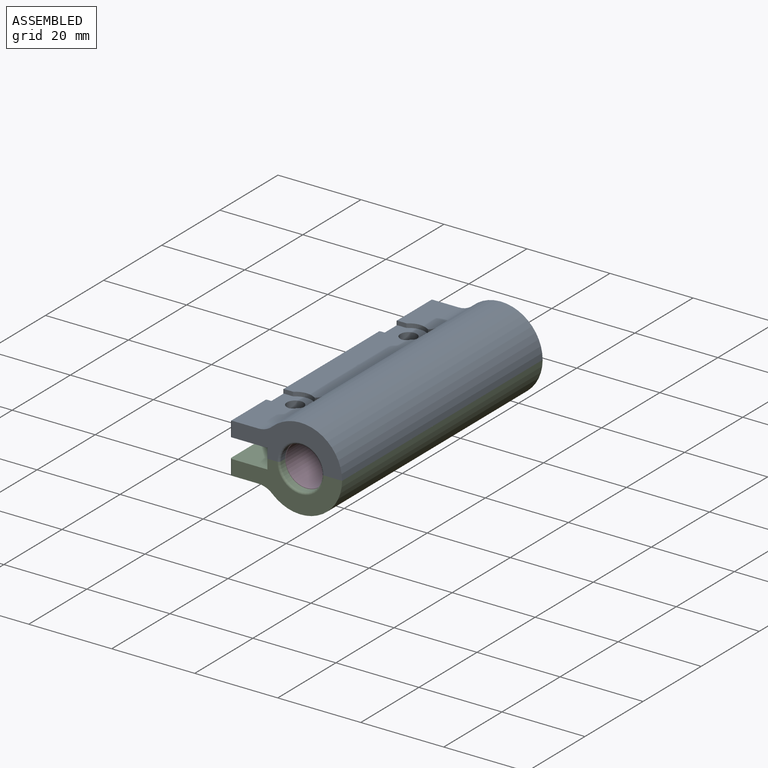
[diagram: assembled view]
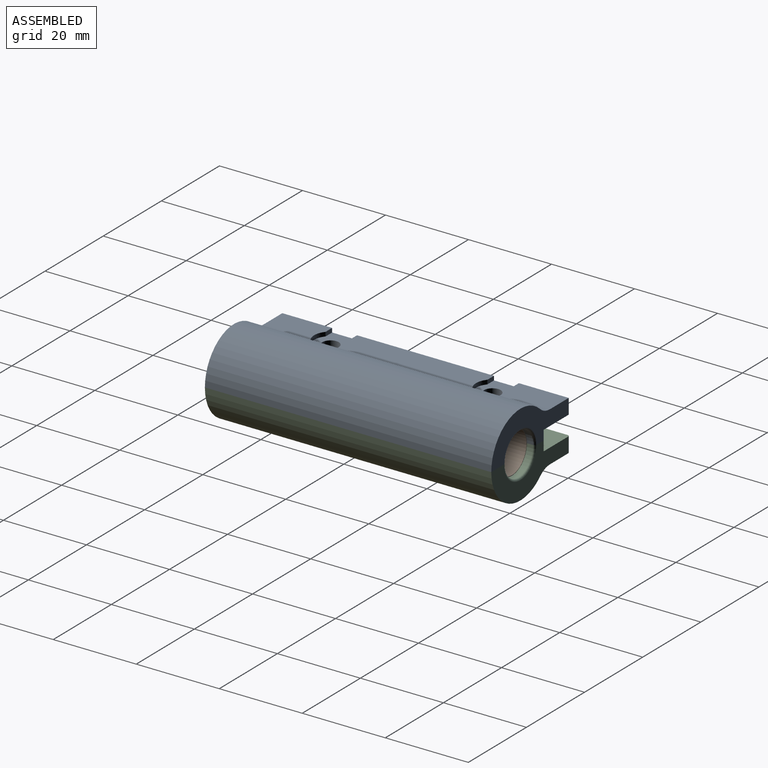
[diagram: assembled view, second angle]
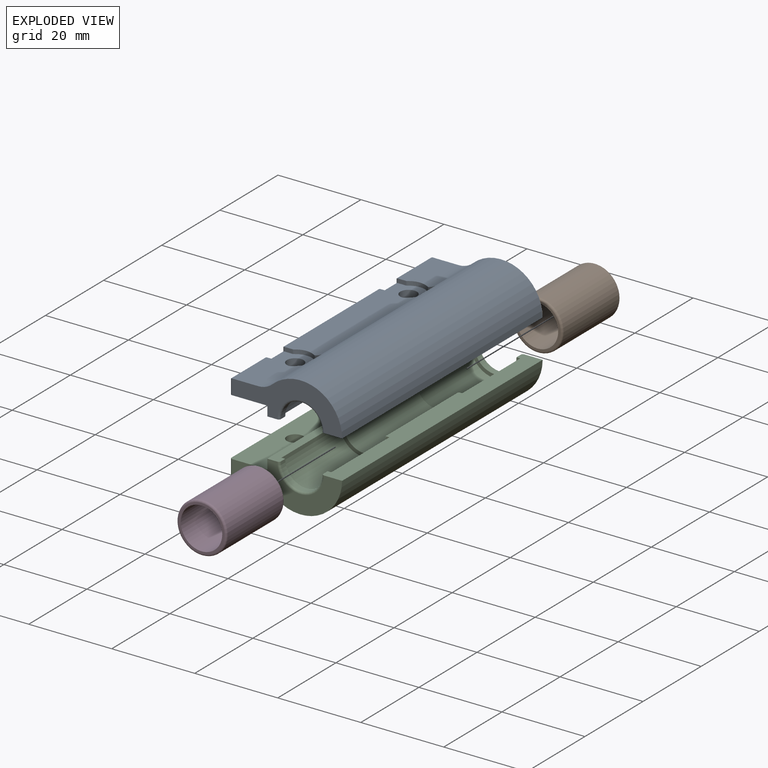
[diagram: exploded view]
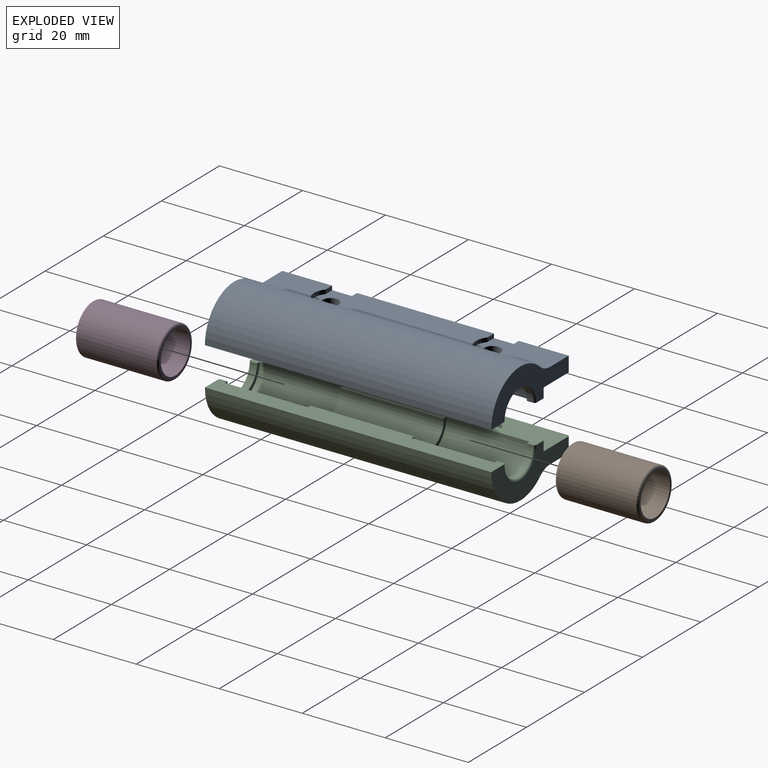
[diagram: exploded view, second angle]
ASSEMBLY  parts=4 mates=3
PART A: 66 faces, bbox 27x10x69 mm
  f0: cylinder r=10mm len=69mm, axis (0,0,1), area 1596.7mm2, adj f3,f10,f12,f13,f23,f24,f25,f33
  f1: plane 12x6.3mm, normal (0,1,0), area 72.6mm2, adj f13,f23,f39,f40,f51,f52
  f2: plane 12x6.3mm, normal (0,1,0), area 72.6mm2, adj f12,f24,f28,f31,f42,f59
  f3: cylinder r=5mm len=33.2mm, axis (0,0,1), area 122.7mm2, adj f0,f11,f26,f30,f34,f35,f54,f57
  f4: cylinder r=6mm len=20mm, axis (0,0,1), area 377mm2, adj f9,f10,f16,f20
  f5: cylinder r=6mm len=20mm, axis (0,0,1), area 377mm2, adj f9,f10,f15,f18
  f6: plane 68x3.15mm, normal (1,0,0), area 200.2mm2, adj f7,f41,f42,f43,f44,f45,f46,f47
  f7: plane 69x9mm, normal (0,-1,0), area 595.8mm2, adj f6,f8,f12,f13,f21,f22,f41,f50
  f8: plane 69x2.35mm, normal (1,0,0), area 162.1mm2, adj f7,f9,f12,f13
  f9: plane 69x2.9mm, normal (0,-1,0), area 164mm2, adj f4,f5,f8,f12,f13,f14,f15,f16
  f10: plane 69x4.9mm, normal (0,-1,0), area 302mm2, adj f0,f4,f5,f12,f13,f14,f15,f16
  f11: plane 33x6.3mm, normal (0,1,0), area 201.9mm2, adj f3,f29,f30,f35,f38,f46,f53,f58
  f12: plane 26.5x10mm, normal (0,0,-1), area 131.2mm2, adj f0,f2,f7,f8,f9,f10,f24,f41
  f13: plane 26.5x10mm, normal (0,0,1), area 131.2mm2, adj f0,f1,f7,f8,f9,f10,f23,f50
  f14: cylinder r=5.1mm len=25mm, axis (0,0,1), area 400.6mm2, adj f9,f10,f15,f16
  f15: plane 12x6mm, normal (0,0,-1), area 15.7mm2, adj f5,f9,f10,f14
  f16: plane 12x6mm, normal (0,0,1), area 15.7mm2, adj f4,f9,f10,f14
  f17: cylinder r=5.1mm len=10.2mm, axis (0,0,-1), area 24mm2, adj f9,f10,f18,f65
  f18: plane 12x6mm, normal (0,0,1), area 15.7mm2, adj f5,f9,f10,f17
  f19: cylinder r=5.1mm len=10.2mm, axis (0,0,1), area 24mm2, adj f9,f10,f20,f64
  f20: plane 12x6mm, normal (0,0,-1), area 15.7mm2, adj f4,f9,f10,f19
  f21: cylinder r=2mm len=4mm, axis (0,-1,0), area 33.3mm2, adj f7,f36
  f22: cylinder r=2mm len=4mm, axis (0,-1,0), area 33.3mm2, adj f7,f32
  f23: cylinder r=5mm len=12.1mm, axis (0,0,1), area 44.5mm2, adj f0,f1,f13,f37,f40,f55,f56
  f24: cylinder r=5mm len=12.1mm, axis (0,0,1), area 44.5mm2, adj f0,f2,f12,f27,f31,f60,f61
  f25: plane 5x2.51mm, normal (1,0,0), area 12.6mm2, adj f0,f32,f61,f63
  f26: plane 2.08x1.95mm, normal (0,0,-1), area 3mm2, adj f3,f32,f62,f63
  f27: plane 2.08x1.95mm, normal (0,0,1), area 3mm2, adj f24,f32,f60,f61
  f28: plane 1.95x1mm, normal (0,0,1), area 2mm2, adj f2,f32,f43,f59
  f29: plane 1.95x1mm, normal (0,0,-1), area 2mm2, adj f11,f32,f45,f58
  f30: cylinder r=3.95mm len=4.88mm, axis (0,1,0), area 5.3mm2, adj f3,f11,f32,f58,f62
  f31: cylinder r=3.95mm len=4.88mm, axis (0,1,0), area 5.3mm2, adj f2,f24,f32,f59,f60
  f32: plane 9.9x7.9mm, normal (0,1,0), area 53.4mm2, adj f22,f25,f26,f27,f28,f29,f30,f31
  f33: plane 5x2.51mm, normal (1,0,0), area 12.6mm2, adj f0,f36,f56,f57
  f34: plane 2.08x1.95mm, normal (0,0,1), area 3mm2, adj f3,f36,f54,f57
  f35: cylinder r=3.95mm len=4.88mm, axis (0,1,0), area 5.3mm2, adj f3,f11,f36,f53,f54
  f36: plane 9.9x7.9mm, normal (0,1,0), area 53.4mm2, adj f21,f33,f34,f35,f37,f38,f39,f40
  f37: plane 2.08x1.95mm, normal (0,0,-1), area 3mm2, adj f23,f36,f55,f56
  f38: plane 1.95x1mm, normal (0,0,1), area 2mm2, adj f11,f36,f47,f53
  f39: plane 1.95x1mm, normal (0,0,-1), area 2mm2, adj f1,f36,f49,f52
  f40: cylinder r=3.95mm len=4.88mm, axis (0,1,0), area 5.3mm2, adj f1,f23,f36,f52,f55
  f41: cylinder r=0.5mm len=3.65mm, axis (0,1,0), area 2.7mm2, adj f6,f7,f12,f42
  f42: cylinder r=0.5mm len=12mm, axis (0,0,1), area 9.1mm2, adj f2,f6,f41,f43
  f43: cylinder r=0.5mm len=1.5mm, axis (0,-1,0), area 0.8mm2, adj f6,f28,f42,f44
  f44: cylinder r=0.5mm len=7mm, axis (0,0,-1), area 5mm2, adj f6,f32,f43,f45
  f45: cylinder r=0.5mm len=1.5mm, axis (0,1,0), area 0.8mm2, adj f6,f29,f44,f46
  f46: cylinder r=0.5mm len=33mm, axis (0,0,1), area 25.6mm2, adj f6,f11,f45,f47
  f47: cylinder r=0.5mm len=1.5mm, axis (0,-1,0), area 0.8mm2, adj f6,f38,f46,f48
  f48: cylinder r=0.5mm len=7mm, axis (0,0,1), area 5mm2, adj f6,f36,f47,f49
  f49: cylinder r=0.5mm len=1.5mm, axis (0,1,0), area 0.8mm2, adj f6,f39,f48,f51
  f50: cylinder r=0.5mm len=3.65mm, axis (0,-1,0), area 2.7mm2, adj f6,f7,f13,f51
  f51: cylinder r=0.5mm len=12mm, axis (0,0,1), area 9.1mm2, adj f1,f6,f49,f50
  f52: cylinder r=0.5mm len=1mm, axis (0,1,0), area 0.3mm2, adj f1,f36,f39,f40
  f53: cylinder r=0.5mm len=1mm, axis (0,1,0), area 0.3mm2, adj f11,f35,f36,f38
  f54: cylinder r=0.5mm len=1.13mm, axis (0,1,0), area 0.4mm2, adj f3,f34,f35,f36
  f55: cylinder r=0.5mm len=1.13mm, axis (0,1,0), area 0.4mm2, adj f23,f36,f37,f40
  f56: cylinder r=0.5mm len=2.51mm, axis (0,-1,0), area 1.8mm2, adj f0,f23,f33,f36,f37
  f57: cylinder r=0.5mm len=2.51mm, axis (0,1,0), area 1.8mm2, adj f0,f3,f33,f34,f36
  f58: cylinder r=0.5mm len=1mm, axis (0,1,0), area 0.3mm2, adj f11,f29,f30,f32
  f59: cylinder r=0.5mm len=1mm, axis (0,1,0), area 0.3mm2, adj f2,f28,f31,f32
  f60: cylinder r=0.5mm len=1.13mm, axis (0,1,0), area 0.4mm2, adj f24,f27,f31,f32
  f61: cylinder r=0.5mm len=2.51mm, axis (0,-1,0), area 1.8mm2, adj f0,f24,f25,f27,f32
  f62: cylinder r=0.5mm len=1.13mm, axis (0,1,0), area 0.4mm2, adj f3,f26,f30,f32
  f63: cylinder r=0.5mm len=2.51mm, axis (0,1,0), area 1.8mm2, adj f0,f3,f25,f26,f32
  f64: torus R=5.6mm, axis (0,0,-1), area 13mm2, adj f9,f10,f13,f19
  f65: torus R=5.6mm, axis (0,0,-1), area 13mm2, adj f9,f10,f12,f17
PART B: 6 faces, bbox 20x13x13 mm
  f0: cylinder r=5mm len=20mm, axis (-1,0,0), area 628.3mm2, adj f2,f3
  f1: cylinder r=6mm len=19mm, axis (-1,0,0), area 716.3mm2, adj f4,f5
  f2: plane 11x11mm, normal (1,0,0), area 16.5mm2, adj f0,f5
  f3: plane 11x11mm, normal (-1,0,0), area 16.5mm2, adj f0,f4
  f4: torus R=5.5mm, axis (1,0,0), area 28.7mm2, adj f1,f3
  f5: torus R=5.5mm, axis (1,0,0), area 28.7mm2, adj f1,f2
PART C: same geometry as A
PART D: same geometry as B
PLACE A rot(axis=(0,-0.71,-0.71),180deg) t=(82.49,-57.28,-11.83)mm
PLACE B rot(axis=(-0.58,-0.58,0.58),120deg) t=(55.99,7.72,-11.83)mm
PLACE C rot(axis=(0,-0.71,0.71),180deg) t=(82.49,27.72,-11.83)mm
PLACE D rot(axis=(-0.71,0.71,0),180deg) t=(55.99,-37.28,-11.83)mm
MATE fastened C.f64 <-> D.f0  axis (0,-1,0) through (55.99,-47.28,-11.83)mm
MATE fastened C.f64 <-> B.f0  axis (0,-1,0) through (55.99,17.72,-11.83)mm
MATE fastened C.f9 <-> A.f9  axis (0,0,1) through (47.99,19.72,-11.83)mm
